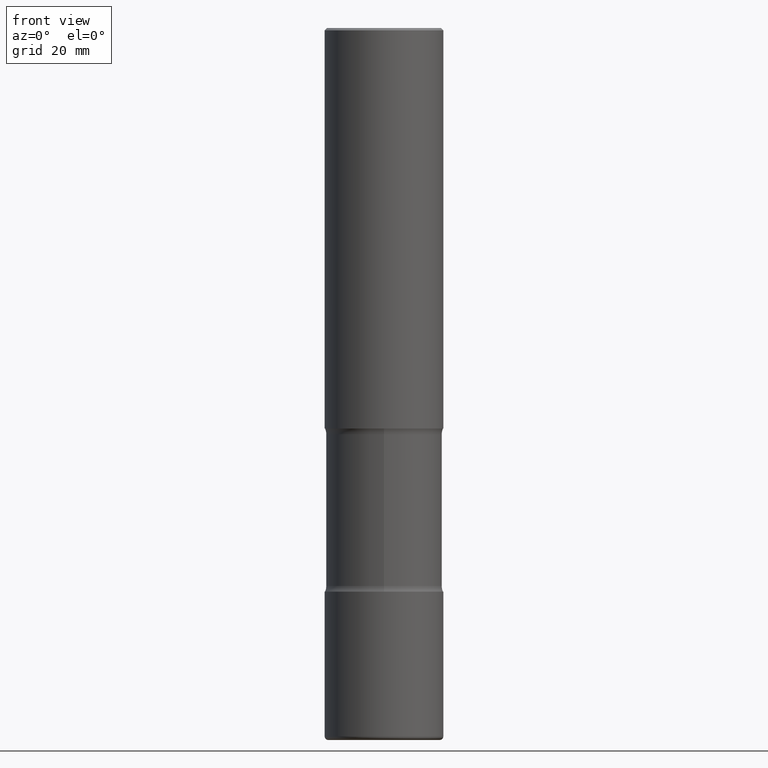
[diagram: clean part render]
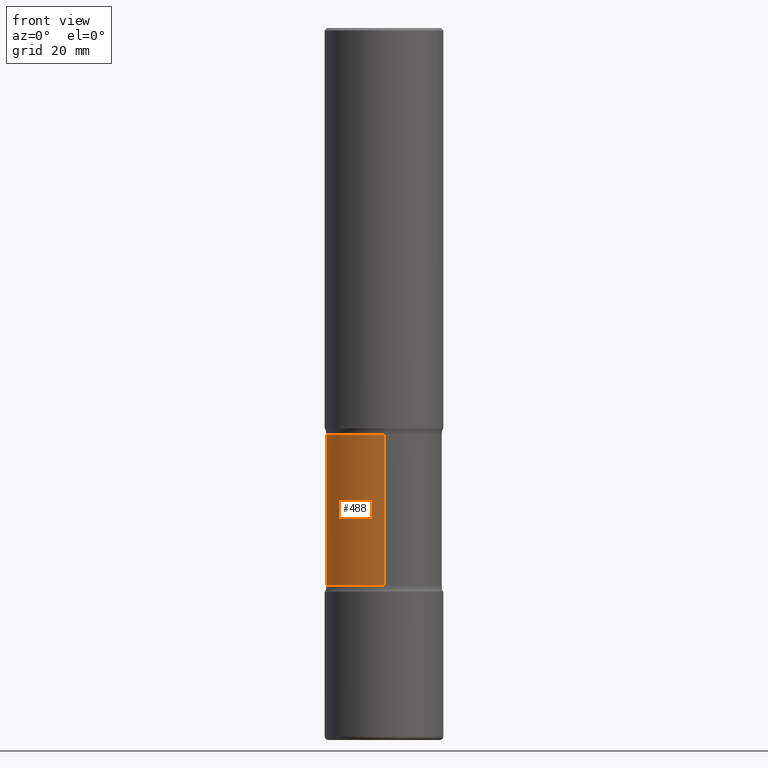
[diagram: same view with one face highlighted and labeled with its STEP entity id]
A machine part, front view. The second image highlights one B-rep face of the part: STEP entity #488.
In plain terms, the highlighted cylindrical surface (partial cylindrical patch) has radius 12.446 mm, axis along (0, -0, -1).
Its self-contained STEP definition (entity closure, byte-faithful):
#5 = AXIS2_PLACEMENT_3D ( 'NONE', #258, #65, #360 ) ;
#16 = ORIENTED_EDGE ( 'NONE', *, *, #188, .F. ) ;
#20 = CARTESIAN_POINT ( 'NONE',  ( -3.395946508896794322E-15, -0.4900000000000163669, -4.701010205144333653 ) ) ;
#37 = ORIENTED_EDGE ( 'NONE', *, *, #354, .T. ) ;
#38 = DIRECTION ( 'NONE',  ( 2.598079946832093802E-29, -3.272933499350004525E-15, -1.000000000000000000 ) ) ;
#65 = DIRECTION ( 'NONE',  ( 2.598079946832093802E-29, -3.272933499350004525E-15, -1.000000000000000000 ) ) ;
#73 = CIRCLE ( 'NONE', #5, 0.4899999999999999911 ) ;
#77 = EDGE_CURVE ( 'NONE', #170, #231, #509, .T. ) ;
#101 = EDGE_LOOP ( 'NONE', ( #513, #478, #37, #16 ) ) ;
#118 = CARTESIAN_POINT ( 'NONE',  ( 1.486357676291951651E-28, -2.067570323369244855E-14, -6.000000000000000888 ) ) ;
#138 = DIRECTION ( 'NONE',  ( 2.598079946832093802E-29, -3.272933499350004525E-15, -1.000000000000000000 ) ) ;
#167 = CARTESIAN_POINT ( 'NONE',  ( 8.170896306099193759E-29, -1.224459313860807689E-14, -3.423989794855665902 ) ) ;
#170 = VERTEX_POINT ( 'NONE', #180 ) ;
#174 = LINE ( 'NONE', #215, #425 ) ;
#180 = CARTESIAN_POINT ( 'NONE',  ( -3.395946508896831399E-15, -0.4900000000000125366, -3.423989794855664126 ) ) ;
#188 = EDGE_CURVE ( 'NONE', #331, #285, #73, .T. ) ;
#191 = DIRECTION ( 'NONE',  ( 2.598079946832093802E-29, -3.272933499350004525E-15, -1.000000000000000000 ) ) ;
#215 = CARTESIAN_POINT ( 'NONE',  ( 3.421651712066419546E-15, 0.4899999999999793965, -6.000000000000001776 ) ) ;
#231 = VERTEX_POINT ( 'NONE', #447 ) ;
#258 = CARTESIAN_POINT ( 'NONE',  ( 1.148869742576547963E-28, -1.642419601879555421E-14, -4.701010205144335430 ) ) ;
#285 = VERTEX_POINT ( 'NONE', #464 ) ;
#312 = VECTOR ( 'NONE', #191, 39.37007874015748143 ) ;
#321 = EDGE_CURVE ( 'NONE', #170, #331, #380, .T. ) ;
#331 = VERTEX_POINT ( 'NONE', #20 ) ;
#332 = CARTESIAN_POINT ( 'NONE',  ( -3.361644018907902538E-15, -0.4900000000000208078, -5.999999999999999112 ) ) ;
#354 = EDGE_CURVE ( 'NONE', #231, #285, #174, .T. ) ;
#360 = DIRECTION ( 'NONE',  ( 6.982962677686265922E-15, 1.000000000000000000, -3.345119992241955130E-15 ) ) ;
#380 = LINE ( 'NONE', #332, #312 ) ;
#407 = CYLINDRICAL_SURFACE ( 'NONE', #433, 0.4900000000000001021 ) ;
#425 = VECTOR ( 'NONE', #138, 39.37007874015748143 ) ;
#428 = DIRECTION ( 'NONE',  ( 2.598079946832093802E-29, -3.272933499350004525E-15, -1.000000000000000000 ) ) ;
#431 = AXIS2_PLACEMENT_3D ( 'NONE', #167, #38, #558 ) ;
#432 = DIRECTION ( 'NONE',  ( 6.982962677686266711E-15, 1.000000000000000000, -2.230079994827969693E-15 ) ) ;
#433 = AXIS2_PLACEMENT_3D ( 'NONE', #118, #428, #432 ) ;
#447 = CARTESIAN_POINT ( 'NONE',  ( 3.421651712066353676E-15, 0.4899999999999880007, -3.423989794855667679 ) ) ;
#457 = FACE_OUTER_BOUND ( 'NONE', #101, .T. ) ;
#464 = CARTESIAN_POINT ( 'NONE',  ( 3.421651712066385231E-15, 0.4899999999999835598, -4.701010205144337206 ) ) ;
#478 = ORIENTED_EDGE ( 'NONE', *, *, #77, .T. ) ;
#488 = ADVANCED_FACE ( 'NONE', ( #457 ), #407, .T. ) ;
#509 = CIRCLE ( 'NONE', #431, 0.4900000000000002132 ) ;
#513 = ORIENTED_EDGE ( 'NONE', *, *, #321, .F. ) ;
#558 = DIRECTION ( 'NONE',  ( 6.982962677686266711E-15, 1.000000000000000000, -3.345119992241953553E-15 ) ) ;